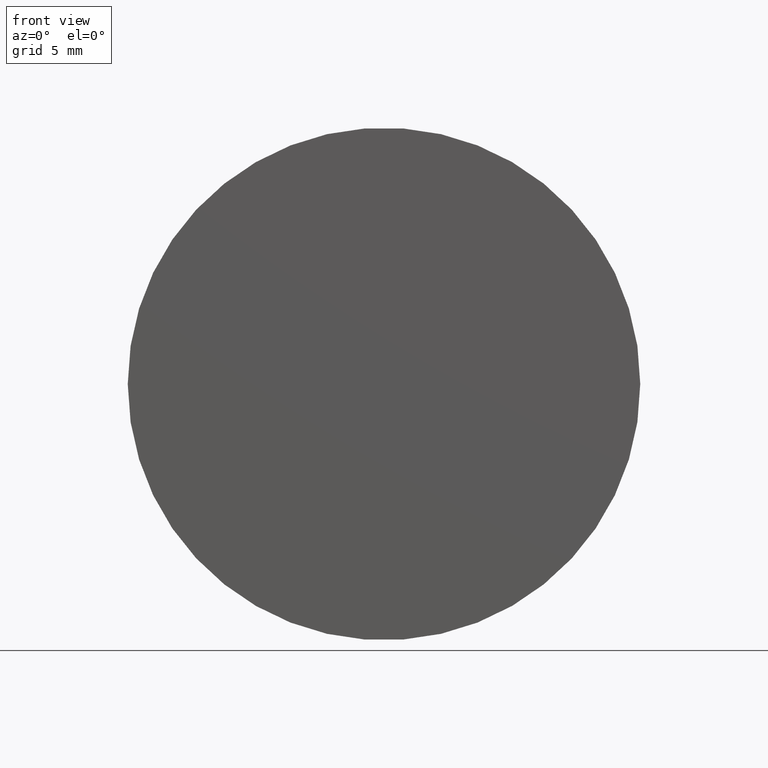
[diagram: clean part render]
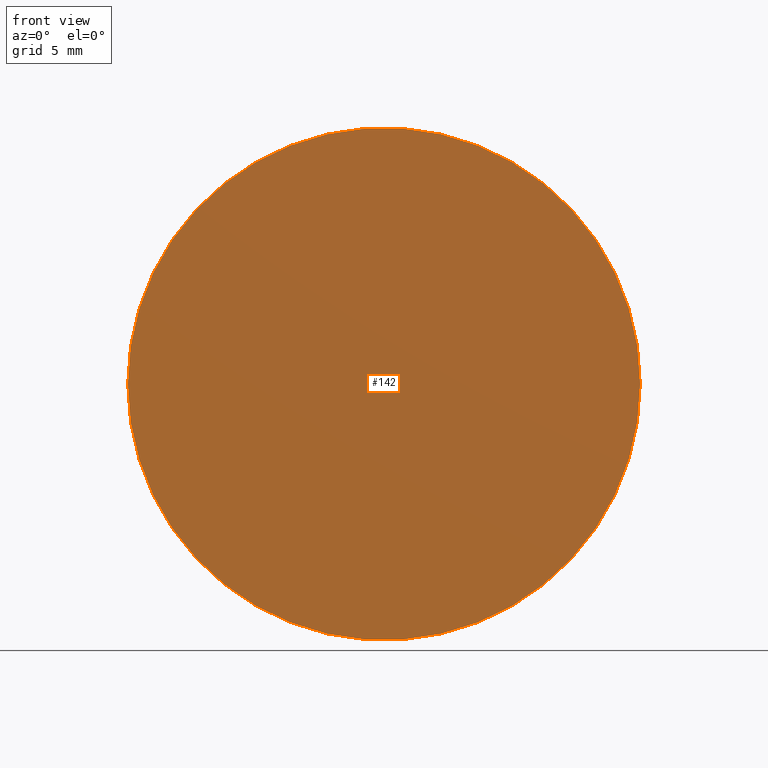
[diagram: same view with one face highlighted and labeled with its STEP entity id]
A machine part, front view. The second image highlights one B-rep face of the part: STEP entity #142.
In plain terms, the highlighted planar face has unit normal (-0, -1, 0).
Its self-contained STEP definition (entity closure, byte-faithful):
#1 = DIRECTION ( 'NONE',  ( -1.000000000000000000, 2.242870150788508378E-17, 0.000000000000000000 ) ) ;
#8 = CARTESIAN_POINT ( 'NONE',  ( -2.407412430484044816E-32, -1.734723475976807094E-15, 0.000000000000000000 ) ) ;
#16 = DIRECTION ( 'NONE',  ( 2.242870150788507762E-17, 1.000000000000000000, -0.000000000000000000 ) ) ;
#26 = AXIS2_PLACEMENT_3D ( 'NONE', #8, #16, #1 ) ;
#36 = FACE_OUTER_BOUND ( 'NONE', #156, .T. ) ;
#48 = DIRECTION ( 'NONE',  ( -2.242870150788507762E-17, -1.000000000000000000, 0.000000000000000000 ) ) ;
#71 = DIRECTION ( 'NONE',  ( 2.242870150788507762E-17, 1.000000000000000000, -0.000000000000000000 ) ) ;
#83 = CARTESIAN_POINT ( 'NONE',  ( -2.407412430484044816E-32, -1.734723475976807094E-15, 0.000000000000000000 ) ) ;
#88 = AXIS2_PLACEMENT_3D ( 'NONE', #151, #48, #161 ) ;
#91 = ORIENTED_EDGE ( 'NONE', *, *, #155, .F. ) ;
#106 = VERTEX_POINT ( 'NONE', #141 ) ;
#107 = AXIS2_PLACEMENT_3D ( 'NONE', #83, #71, #191 ) ;
#112 = PLANE ( 'NONE',  #88 ) ;
#114 = EDGE_CURVE ( 'NONE', #106, #127, #152, .T. ) ;
#116 = CIRCLE ( 'NONE', #26, 15.00000000000000000 ) ;
#118 = ORIENTED_EDGE ( 'NONE', *, *, #114, .F. ) ;
#127 = VERTEX_POINT ( 'NONE', #162 ) ;
#141 = CARTESIAN_POINT ( 'NONE',  ( 15.00000000000000000, -2.071153998595083505E-15, 1.836970198721029589E-15 ) ) ;
#142 = ADVANCED_FACE ( 'NONE', ( #36 ), #112, .T. ) ;
#151 = CARTESIAN_POINT ( 'NONE',  ( -2.437327801797070117E-32, -1.086700360669653000E-15, 0.000000000000000000 ) ) ;
#152 = CIRCLE ( 'NONE', #107, 15.00000000000000000 ) ;
#155 = EDGE_CURVE ( 'NONE', #127, #106, #116, .T. ) ;
#156 = EDGE_LOOP ( 'NONE', ( #91, #118 ) ) ;
#161 = DIRECTION ( 'NONE',  ( 1.000000000000000000, -2.242870150788507762E-17, 0.000000000000000000 ) ) ;
#162 = CARTESIAN_POINT ( 'NONE',  ( -15.00000000000000000, -1.398292953358530881E-15, 0.000000000000000000 ) ) ;
#191 = DIRECTION ( 'NONE',  ( -1.000000000000000000, 2.242870150788508378E-17, 0.000000000000000000 ) ) ;